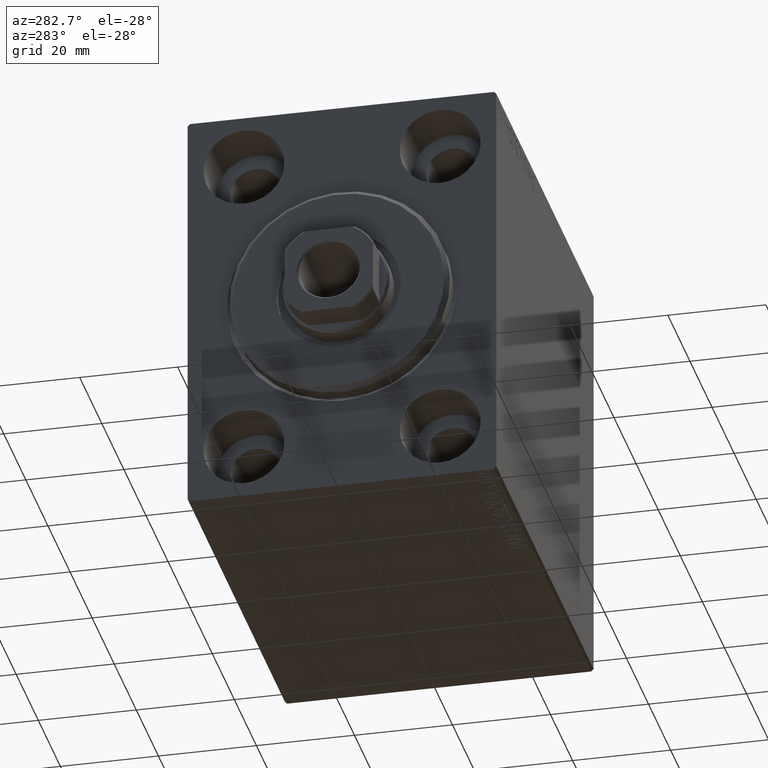
[diagram: clean part render]
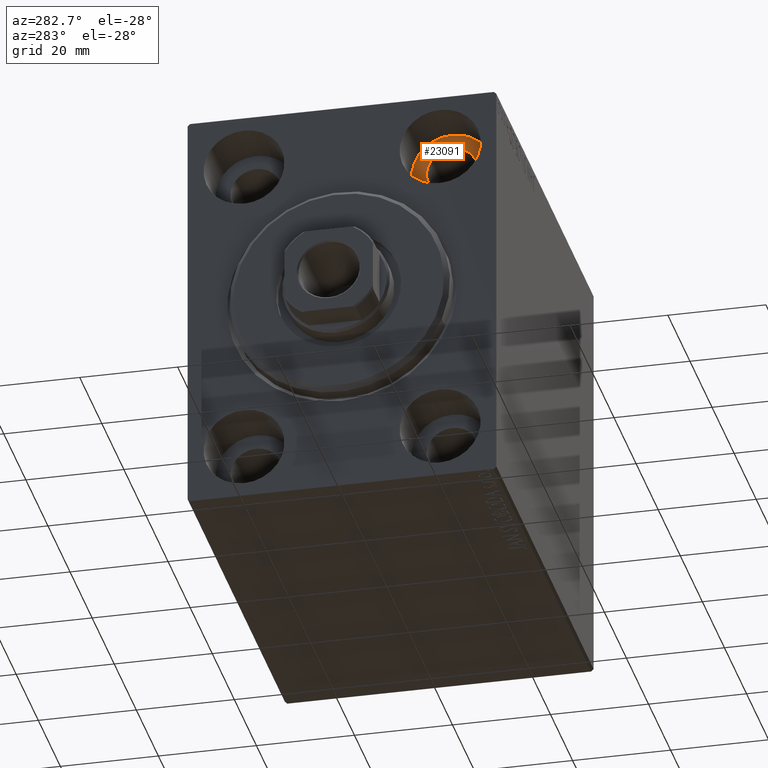
[diagram: same view with one face highlighted and labeled with its STEP entity id]
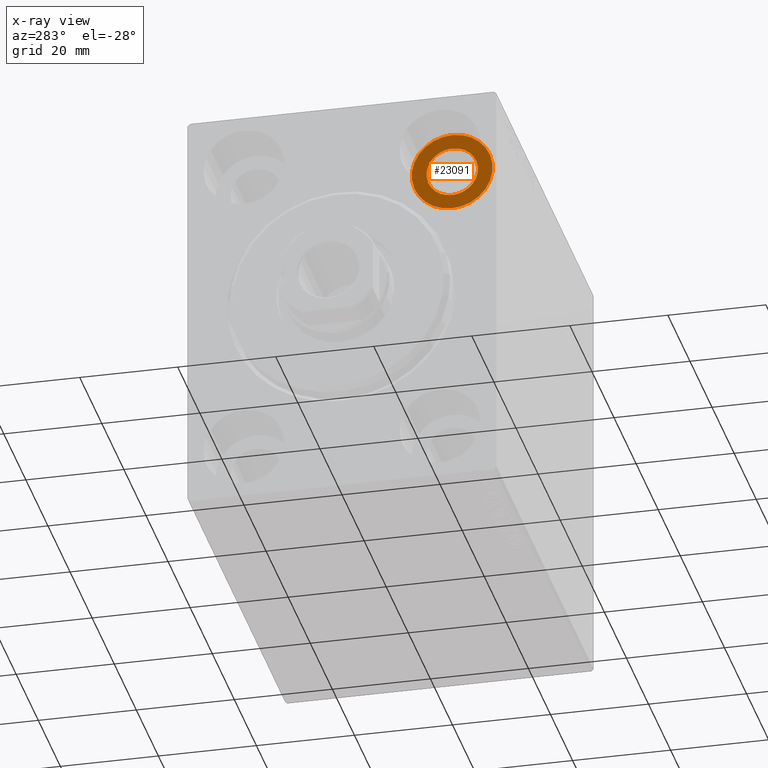
[diagram: x-ray of the same camera — body ghosted, the highlighted face saturated]
A machine part, auxiliary view. The second image highlights one B-rep face of the part: STEP entity #23091.
The next image is the same camera in x-ray: the body ghosted, the highlighted face saturated — about 0% of this face is hidden behind the body in this view.
In plain terms, the highlighted planar face has unit normal (-1, 0, 0).
Its self-contained STEP definition (entity closure, byte-faithful):
#553 = ORIENTED_EDGE ( 'NONE', *, *, #25518, .F. ) ;
#1854 = CIRCLE ( 'NONE', #13965, 5.249999999999997335 ) ;
#2979 = VERTEX_POINT ( 'NONE', #43819 ) ;
#4193 = PLANE ( 'NONE',  #19903 ) ;
#5952 = EDGE_CURVE ( 'NONE', #19128, #25512, #38024, .T. ) ;
#7521 = CARTESIAN_POINT ( 'NONE',  ( 10.99999999999999645, -19.99999999999999645, 31.50000000000000000 ) ) ;
#7959 = FACE_OUTER_BOUND ( 'NONE', #8982, .T. ) ;
#8907 = EDGE_CURVE ( 'NONE', #36034, #2979, #1854, .T. ) ;
#8982 = EDGE_LOOP ( 'NONE', ( #10893, #17902 ) ) ;
#9205 = CIRCLE ( 'NONE', #27674, 8.249999999999992895 ) ;
#10893 = ORIENTED_EDGE ( 'NONE', *, *, #23897, .T. ) ;
#11297 = DIRECTION ( 'NONE',  ( -1.000000000000000000, 0.000000000000000000, 0.000000000000000000 ) ) ;
#13965 = AXIS2_PLACEMENT_3D ( 'NONE', #7521, #21985, #21331 ) ;
#17644 = DIRECTION ( 'NONE',  ( 0.000000000000000000, 0.000000000000000000, 1.000000000000000000 ) ) ;
#17902 = ORIENTED_EDGE ( 'NONE', *, *, #5952, .T. ) ;
#18542 = CIRCLE ( 'NONE', #39130, 5.249999999999997335 ) ;
#19128 = VERTEX_POINT ( 'NONE', #40544 ) ;
#19903 = AXIS2_PLACEMENT_3D ( 'NONE', #27764, #11297, #41555 ) ;
#20296 = DIRECTION ( 'NONE',  ( 0.000000000000000000, 0.000000000000000000, 1.000000000000000000 ) ) ;
#20955 = CARTESIAN_POINT ( 'NONE',  ( 10.99999999999999645, -19.99999999999999645, 31.50000000000000000 ) ) ;
#21331 = DIRECTION ( 'NONE',  ( 0.000000000000000000, 0.000000000000000000, 1.000000000000000000 ) ) ;
#21985 = DIRECTION ( 'NONE',  ( -1.000000000000000000, 0.000000000000000000, 0.000000000000000000 ) ) ;
#23091 = ADVANCED_FACE ( 'NONE', ( #34898, #7959 ), #4193, .T. ) ;
#23616 = DIRECTION ( 'NONE',  ( -1.000000000000000000, 0.000000000000000000, 0.000000000000000000 ) ) ;
#23897 = EDGE_CURVE ( 'NONE', #25512, #19128, #9205, .T. ) ;
#25512 = VERTEX_POINT ( 'NONE', #28057 ) ;
#25518 = EDGE_CURVE ( 'NONE', #2979, #36034, #18542, .T. ) ;
#27163 = CARTESIAN_POINT ( 'NONE',  ( 11.00000000000000000, -19.99999999999999645, 31.50000000000000000 ) ) ;
#27674 = AXIS2_PLACEMENT_3D ( 'NONE', #36759, #23616, #20296 ) ;
#27764 = CARTESIAN_POINT ( 'NONE',  ( 11.00000000000000000, 0.000000000000000000, 0.000000000000000000 ) ) ;
#28057 = CARTESIAN_POINT ( 'NONE',  ( 11.00000000000000000, -19.99999999999999645, 39.74999999999999289 ) ) ;
#30072 = DIRECTION ( 'NONE',  ( 0.000000000000000000, 0.000000000000000000, 1.000000000000000000 ) ) ;
#31639 = AXIS2_PLACEMENT_3D ( 'NONE', #27163, #43193, #30072 ) ;
#34898 = FACE_BOUND ( 'NONE', #39857, .T. ) ;
#36034 = VERTEX_POINT ( 'NONE', #41355 ) ;
#36759 = CARTESIAN_POINT ( 'NONE',  ( 11.00000000000000000, -19.99999999999999645, 31.50000000000000000 ) ) ;
#38024 = CIRCLE ( 'NONE', #31639, 8.249999999999992895 ) ;
#38997 = ORIENTED_EDGE ( 'NONE', *, *, #8907, .F. ) ;
#39130 = AXIS2_PLACEMENT_3D ( 'NONE', #20955, #40772, #17644 ) ;
#39857 = EDGE_LOOP ( 'NONE', ( #38997, #553 ) ) ;
#40544 = CARTESIAN_POINT ( 'NONE',  ( 11.00000000000000000, -19.99999999999999645, 23.25000000000000355 ) ) ;
#40772 = DIRECTION ( 'NONE',  ( -1.000000000000000000, 0.000000000000000000, 0.000000000000000000 ) ) ;
#41355 = CARTESIAN_POINT ( 'NONE',  ( 10.99999999999999645, -19.99999999999999645, 36.75000000000000000 ) ) ;
#41555 = DIRECTION ( 'NONE',  ( 0.000000000000000000, 0.000000000000000000, 1.000000000000000000 ) ) ;
#43193 = DIRECTION ( 'NONE',  ( -1.000000000000000000, 0.000000000000000000, 0.000000000000000000 ) ) ;
#43819 = CARTESIAN_POINT ( 'NONE',  ( 10.99999999999999645, -19.99999999999999645, 26.25000000000000355 ) ) ;